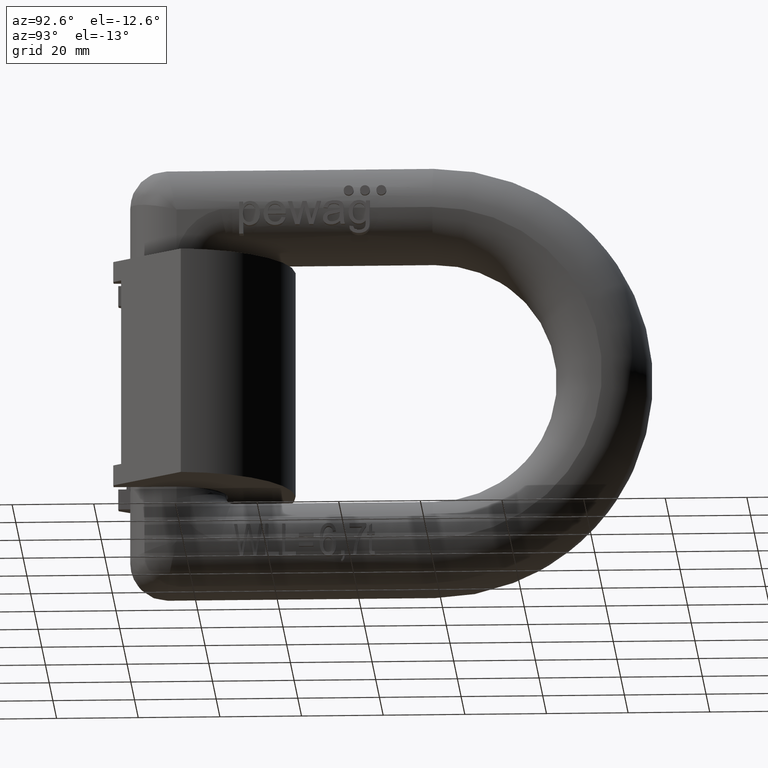
[diagram: clean part render]
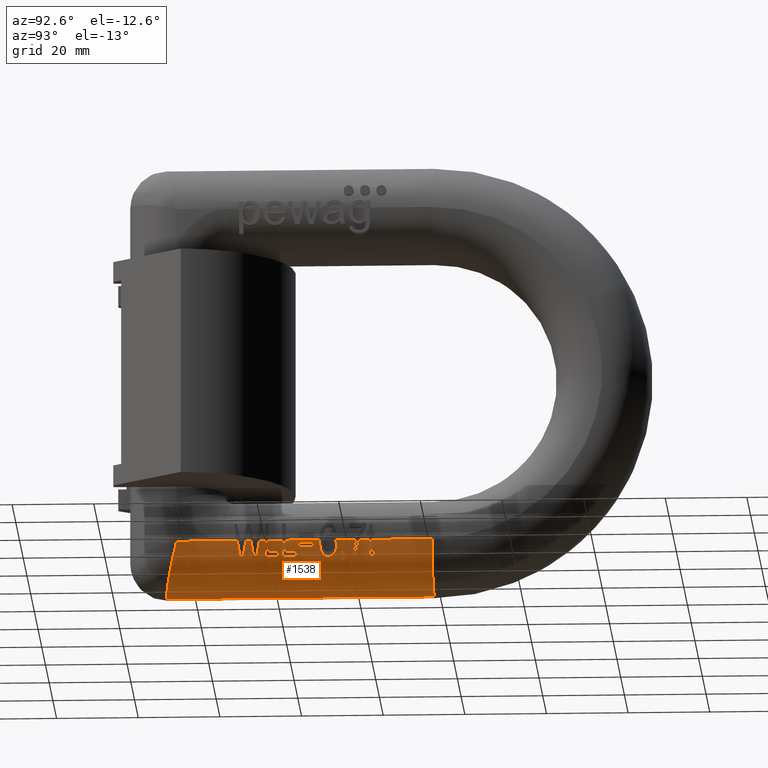
[diagram: same view with one face highlighted and labeled with its STEP entity id]
A machine part, auxiliary view. The second image highlights one B-rep face of the part: STEP entity #1538.
In plain terms, the highlighted cylindrical surface (partial cylindrical patch) has radius 11.9 mm, axis along (-0, -1, 0).
Its self-contained STEP definition (entity closure, byte-faithful):
#234=FACE_BOUND('',#2509,.T.);
#235=FACE_BOUND('',#2510,.T.);
#236=FACE_BOUND('',#2511,.T.);
#305=ELLIPSE('',#8958,12.102893621517,11.9);
#306=ELLIPSE('',#8959,12.1060174139765,11.9);
#307=ELLIPSE('',#8960,12.1090062409468,11.9);
#308=ELLIPSE('',#8961,12.0899635809989,11.9);
#309=ELLIPSE('',#8962,12.2482651832821,11.9);
#310=ELLIPSE('',#8964,11.9718380233263,11.9);
#311=ELLIPSE('',#8974,13.3524083678477,11.9);
#715=B_SPLINE_CURVE_WITH_KNOTS('',3,(#14803,#14804,#14805,#14806,#14807,
#14808,#14809,#14810),.UNSPECIFIED.,.F.,.F.,(4,2,2,4),(0.,0.250000000000002,
0.500000000000004,1.),.UNSPECIFIED.);
#716=B_SPLINE_CURVE_WITH_KNOTS('',3,(#14812,#14813,#14814,#14815,#14816,
#14817,#14818,#14819,#14820,#14821),.UNSPECIFIED.,.F.,.F.,(4,3,3,4),(0.,
0.277381054017758,0.554361829168191,1.),.UNSPECIFIED.);
#717=B_SPLINE_CURVE_WITH_KNOTS('',3,(#14823,#14824,#14825,#14826,#14827,
#14828,#14829,#14830,#14831,#14832),.UNSPECIFIED.,.F.,.F.,(4,3,3,4),(0.,
0.302697489149676,0.785221035381137,1.),.UNSPECIFIED.);
#718=B_SPLINE_CURVE_WITH_KNOTS('',3,(#14834,#14835,#14836,#14837,#14838,
#14839,#14840,#14841,#14842,#14843),.UNSPECIFIED.,.F.,.F.,(4,3,3,4),(0.,
0.312443709364124,0.65513485716501,1.),.UNSPECIFIED.);
#719=B_SPLINE_CURVE_WITH_KNOTS('',3,(#14847,#14848,#14849,#14850,#14851,
#14852,#14853,#14854,#14855,#14856,#14857,#14858,#14859,#14860,#14861,#14862),
 .UNSPECIFIED.,.F.,.F.,(4,3,3,3,3,4),(0.,0.204822285861984,0.35474350545683,
0.507028701803558,0.710336197583031,1.),.UNSPECIFIED.);
#720=B_SPLINE_CURVE_WITH_KNOTS('',3,(#14864,#14865,#14866,#14867,#14868,
#14869,#14870,#14871,#14872,#14873),.UNSPECIFIED.,.F.,.F.,(4,3,3,4),(0.,
0.374425395853647,0.685134623875943,1.),.UNSPECIFIED.);
#721=B_SPLINE_CURVE_WITH_KNOTS('',3,(#14874,#14875,#14876,#14877),
 .UNSPECIFIED.,.F.,.F.,(4,4),(0.,1.),.UNSPECIFIED.);
#722=B_SPLINE_CURVE_WITH_KNOTS('',3,(#14879,#14880,#14881,#14882,#14883,
#14884,#14885,#14886,#14887,#14888),.UNSPECIFIED.,.F.,.F.,(4,3,3,4),(0.,
0.496226189770755,0.747539893670818,1.),.UNSPECIFIED.);
#723=B_SPLINE_CURVE_WITH_KNOTS('',3,(#14892,#14893,#14894,#14895),
 .UNSPECIFIED.,.F.,.F.,(4,4),(0.,1.),.UNSPECIFIED.);
#724=B_SPLINE_CURVE_WITH_KNOTS('',3,(#14896,#14897,#14898,#14899,#14900,
#14901,#14902,#14903,#14904,#14905,#14906,#14907,#14908,#14909),
 .UNSPECIFIED.,.F.,.F.,(4,2,2,2,2,2,4),(0.,0.25,0.374999999999999,0.499999999999999,
0.624999999999999,0.749999999999999,1.),.UNSPECIFIED.);
#725=B_SPLINE_CURVE_WITH_KNOTS('',3,(#14943,#14944,#14945,#14946,#14947,
#14948,#14949,#14950,#14951,#14952),.UNSPECIFIED.,.F.,.F.,(4,3,3,4),(0.,
0.264014276087498,0.630531512968283,1.),.UNSPECIFIED.);
#726=B_SPLINE_CURVE_WITH_KNOTS('',3,(#14954,#14955,#14956,#14957,#14958,
#14959,#14960,#14961,#14962,#14963,#14964,#14965,#14966),.UNSPECIFIED.,
 .F.,.F.,(4,3,3,3,4),(0.,0.246504200099053,0.493094680184417,0.743524338618405,
1.),.UNSPECIFIED.);
#727=B_SPLINE_CURVE_WITH_KNOTS('',3,(#14970,#14971,#14972,#14973,#14974,
#14975,#14976,#14977,#14978,#14979,#14980,#14981,#14982),.UNSPECIFIED.,
 .F.,.F.,(4,3,3,3,4),(0.,0.346221630554715,0.698864889148944,0.902314569395443,
1.),.UNSPECIFIED.);
#1538=ADVANCED_FACE('',(#234,#235,#236),#1786,.T.);
#1786=CYLINDRICAL_SURFACE('',#8975,11.9);
#2509=EDGE_LOOP('',(#4244,#4245,#4246,#4247,#4248,#4249,#4250,#4251,#4252,
#4253,#4254,#4255,#4256,#4257,#4258,#4259,#4260,#4261,#4262,#4263,#4264,
#4265,#4266,#4267,#4268,#4269,#4270,#4271,#4272,#4273,#4274,#4275,#4276,
#4277,#4278,#4279,#4280,#4281,#4282,#4283,#4284));
#2510=EDGE_LOOP('',(#4285,#4286,#4287,#4288));
#2511=EDGE_LOOP('',(#4289,#4290,#4291,#4292,#4293,#4294,#4295));
#2809=CIRCLE('',#8963,11.9);
#2810=CIRCLE('',#8965,11.9);
#2811=CIRCLE('',#8966,11.9);
#2812=CIRCLE('',#8967,11.9);
#2813=CIRCLE('',#8968,11.9);
#2814=CIRCLE('',#8969,11.9);
#2815=CIRCLE('',#8970,11.9);
#2816=CIRCLE('',#8971,11.9);
#2817=CIRCLE('',#8972,11.9);
#2818=CIRCLE('',#8973,11.9);
#4244=ORIENTED_EDGE('',*,*,#6936,.F.);
#4245=ORIENTED_EDGE('',*,*,#6937,.F.);
#4246=ORIENTED_EDGE('',*,*,#6938,.F.);
#4247=ORIENTED_EDGE('',*,*,#6939,.T.);
#4248=ORIENTED_EDGE('',*,*,#6940,.F.);
#4249=ORIENTED_EDGE('',*,*,#6941,.F.);
#4250=ORIENTED_EDGE('',*,*,#6942,.F.);
#4251=ORIENTED_EDGE('',*,*,#6931,.T.);
#4252=ORIENTED_EDGE('',*,*,#6943,.T.);
#4253=ORIENTED_EDGE('',*,*,#6944,.F.);
#4254=ORIENTED_EDGE('',*,*,#6945,.F.);
#4255=ORIENTED_EDGE('',*,*,#6277,.F.);
#4256=ORIENTED_EDGE('',*,*,#6946,.T.);
#4257=ORIENTED_EDGE('',*,*,#6928,.T.);
#4258=ORIENTED_EDGE('',*,*,#6947,.F.);
#4259=ORIENTED_EDGE('',*,*,#6948,.F.);
#4260=ORIENTED_EDGE('',*,*,#6949,.F.);
#4261=ORIENTED_EDGE('',*,*,#6950,.F.);
#4262=ORIENTED_EDGE('',*,*,#6951,.F.);
#4263=ORIENTED_EDGE('',*,*,#6952,.F.);
#4264=ORIENTED_EDGE('',*,*,#6953,.F.);
#4265=ORIENTED_EDGE('',*,*,#6916,.T.);
#4266=ORIENTED_EDGE('',*,*,#6954,.F.);
#4267=ORIENTED_EDGE('',*,*,#6955,.F.);
#4268=ORIENTED_EDGE('',*,*,#6956,.F.);
#4269=ORIENTED_EDGE('',*,*,#6957,.F.);
#4270=ORIENTED_EDGE('',*,*,#6909,.T.);
#4271=ORIENTED_EDGE('',*,*,#6958,.F.);
#4272=ORIENTED_EDGE('',*,*,#6899,.T.);
#4273=ORIENTED_EDGE('',*,*,#6959,.F.);
#4274=ORIENTED_EDGE('',*,*,#6960,.F.);
#4275=ORIENTED_EDGE('',*,*,#6961,.F.);
#4276=ORIENTED_EDGE('',*,*,#6962,.F.);
#4277=ORIENTED_EDGE('',*,*,#6963,.F.);
#4278=ORIENTED_EDGE('',*,*,#6895,.T.);
#4279=ORIENTED_EDGE('',*,*,#6964,.F.);
#4280=ORIENTED_EDGE('',*,*,#6965,.F.);
#4281=ORIENTED_EDGE('',*,*,#6966,.F.);
#4282=ORIENTED_EDGE('',*,*,#6967,.F.);
#4283=ORIENTED_EDGE('',*,*,#6968,.F.);
#4284=ORIENTED_EDGE('',*,*,#6891,.T.);
#4285=ORIENTED_EDGE('',*,*,#6969,.F.);
#4286=ORIENTED_EDGE('',*,*,#6970,.F.);
#4287=ORIENTED_EDGE('',*,*,#6971,.F.);
#4288=ORIENTED_EDGE('',*,*,#6972,.F.);
#4289=ORIENTED_EDGE('',*,*,#6973,.F.);
#4290=ORIENTED_EDGE('',*,*,#6974,.F.);
#4291=ORIENTED_EDGE('',*,*,#6975,.F.);
#4292=ORIENTED_EDGE('',*,*,#6976,.F.);
#4293=ORIENTED_EDGE('',*,*,#6977,.F.);
#4294=ORIENTED_EDGE('',*,*,#6978,.F.);
#4295=ORIENTED_EDGE('',*,*,#6979,.F.);
#5420=VERTEX_POINT('',#10951);
#5422=VERTEX_POINT('',#10957);
#5821=VERTEX_POINT('',#14565);
#5828=VERTEX_POINT('',#14590);
#5829=VERTEX_POINT('',#14592);
#5832=VERTEX_POINT('',#14598);
#5833=VERTEX_POINT('',#14600);
#5836=VERTEX_POINT('',#14606);
#5837=VERTEX_POINT('',#14608);
#5846=VERTEX_POINT('',#14718);
#5847=VERTEX_POINT('',#14720);
#5853=VERTEX_POINT('',#14738);
#5854=VERTEX_POINT('',#14740);
#5865=VERTEX_POINT('',#14768);
#5866=VERTEX_POINT('',#14770);
#5867=VERTEX_POINT('',#14773);
#5872=VERTEX_POINT('',#14785);
#5873=VERTEX_POINT('',#14787);
#5874=VERTEX_POINT('',#14789);
#5875=VERTEX_POINT('',#14791);
#5876=VERTEX_POINT('',#14793);
#5877=VERTEX_POINT('',#14795);
#5878=VERTEX_POINT('',#14798);
#5879=VERTEX_POINT('',#14800);
#5880=VERTEX_POINT('',#14811);
#5881=VERTEX_POINT('',#14822);
#5882=VERTEX_POINT('',#14833);
#5883=VERTEX_POINT('',#14844);
#5884=VERTEX_POINT('',#14846);
#5885=VERTEX_POINT('',#14863);
#5886=VERTEX_POINT('',#14878);
#5887=VERTEX_POINT('',#14889);
#5888=VERTEX_POINT('',#14891);
#5889=VERTEX_POINT('',#14911);
#5890=VERTEX_POINT('',#14913);
#5891=VERTEX_POINT('',#14915);
#5892=VERTEX_POINT('',#14917);
#5893=VERTEX_POINT('',#14920);
#5894=VERTEX_POINT('',#14922);
#5895=VERTEX_POINT('',#14924);
#5896=VERTEX_POINT('',#14926);
#5897=VERTEX_POINT('',#14929);
#5898=VERTEX_POINT('',#14930);
#5899=VERTEX_POINT('',#14932);
#5900=VERTEX_POINT('',#14934);
#5901=VERTEX_POINT('',#14937);
#5902=VERTEX_POINT('',#14938);
#5903=VERTEX_POINT('',#14940);
#5904=VERTEX_POINT('',#14942);
#5905=VERTEX_POINT('',#14953);
#5906=VERTEX_POINT('',#14967);
#5907=VERTEX_POINT('',#14969);
#6277=EDGE_CURVE('',#5420,#5422,#7523,.T.);
#6891=EDGE_CURVE('',#5829,#5828,#7760,.T.);
#6895=EDGE_CURVE('',#5833,#5832,#7762,.T.);
#6899=EDGE_CURVE('',#5837,#5836,#7764,.T.);
#6909=EDGE_CURVE('',#5847,#5846,#7765,.T.);
#6916=EDGE_CURVE('',#5854,#5853,#7768,.T.);
#6928=EDGE_CURVE('',#5866,#5865,#7773,.T.);
#6931=EDGE_CURVE('',#5821,#5867,#7774,.T.);
#6936=EDGE_CURVE('',#5872,#5828,#305,.T.);
#6937=EDGE_CURVE('',#5873,#5872,#7777,.T.);
#6938=EDGE_CURVE('',#5874,#5873,#306,.T.);
#6939=EDGE_CURVE('',#5874,#5875,#7778,.T.);
#6940=EDGE_CURVE('',#5876,#5875,#307,.T.);
#6941=EDGE_CURVE('',#5877,#5876,#7779,.T.);
#6942=EDGE_CURVE('',#5821,#5877,#308,.T.);
#6943=EDGE_CURVE('',#5867,#5878,#7780,.T.);
#6944=EDGE_CURVE('',#5879,#5878,#7781,.T.);
#6945=EDGE_CURVE('',#5422,#5879,#309,.T.);
#6946=EDGE_CURVE('',#5420,#5866,#2809,.T.);
#6947=EDGE_CURVE('',#5880,#5865,#715,.T.);
#6948=EDGE_CURVE('',#5881,#5880,#716,.T.);
#6949=EDGE_CURVE('',#5882,#5881,#717,.T.);
#6950=EDGE_CURVE('',#5883,#5882,#718,.T.);
#6951=EDGE_CURVE('',#5884,#5883,#310,.T.);
#6952=EDGE_CURVE('',#5885,#5884,#719,.T.);
#6953=EDGE_CURVE('',#5854,#5885,#720,.T.);
#6954=EDGE_CURVE('',#5886,#5853,#721,.T.);
#6955=EDGE_CURVE('',#5887,#5886,#722,.T.);
#6956=EDGE_CURVE('',#5888,#5887,#7782,.T.);
#6957=EDGE_CURVE('',#5847,#5888,#723,.T.);
#6958=EDGE_CURVE('',#5837,#5846,#724,.T.);
#6959=EDGE_CURVE('',#5889,#5836,#2810,.T.);
#6960=EDGE_CURVE('',#5890,#5889,#7783,.T.);
#6961=EDGE_CURVE('',#5891,#5890,#2811,.T.);
#6962=EDGE_CURVE('',#5892,#5891,#7784,.T.);
#6963=EDGE_CURVE('',#5833,#5892,#2812,.T.);
#6964=EDGE_CURVE('',#5893,#5832,#2813,.T.);
#6965=EDGE_CURVE('',#5894,#5893,#7785,.T.);
#6966=EDGE_CURVE('',#5895,#5894,#2814,.T.);
#6967=EDGE_CURVE('',#5896,#5895,#7786,.T.);
#6968=EDGE_CURVE('',#5829,#5896,#2815,.T.);
#6969=EDGE_CURVE('',#5897,#5898,#2816,.T.);
#6970=EDGE_CURVE('',#5899,#5897,#7787,.T.);
#6971=EDGE_CURVE('',#5900,#5899,#2817,.T.);
#6972=EDGE_CURVE('',#5898,#5900,#7788,.T.);
#6973=EDGE_CURVE('',#5901,#5902,#7789,.T.);
#6974=EDGE_CURVE('',#5903,#5901,#2818,.T.);
#6975=EDGE_CURVE('',#5904,#5903,#7790,.T.);
#6976=EDGE_CURVE('',#5905,#5904,#725,.T.);
#6977=EDGE_CURVE('',#5906,#5905,#726,.T.);
#6978=EDGE_CURVE('',#5907,#5906,#311,.T.);
#6979=EDGE_CURVE('',#5902,#5907,#727,.T.);
#7523=LINE('',#10956,#8049);
#7760=LINE('',#14591,#8368);
#7762=LINE('',#14599,#8370);
#7764=LINE('',#14607,#8372);
#7765=LINE('',#14719,#8373);
#7768=LINE('',#14739,#8376);
#7773=LINE('',#14769,#8381);
#7774=LINE('',#14774,#8382);
#7777=LINE('',#14786,#8385);
#7778=LINE('',#14790,#8386);
#7779=LINE('',#14794,#8387);
#7780=LINE('',#14797,#8388);
#7781=LINE('',#14799,#8389);
#7782=LINE('',#14890,#8390);
#7783=LINE('',#14912,#8391);
#7784=LINE('',#14916,#8392);
#7785=LINE('',#14921,#8393);
#7786=LINE('',#14925,#8394);
#7787=LINE('',#14931,#8395);
#7788=LINE('',#14935,#8396);
#7789=LINE('',#14936,#8397);
#7790=LINE('',#14941,#8398);
#8049=VECTOR('',#9288,1.);
#8368=VECTOR('',#10061,1.);
#8370=VECTOR('',#10067,1.);
#8372=VECTOR('',#10073,1.);
#8373=VECTOR('',#10076,1.);
#8376=VECTOR('',#10083,1.);
#8381=VECTOR('',#10098,1.);
#8382=VECTOR('',#10103,1.);
#8385=VECTOR('',#10114,1.);
#8386=VECTOR('',#10117,1.);
#8387=VECTOR('',#10120,1.);
#8388=VECTOR('',#10123,1.);
#8389=VECTOR('',#10124,1.);
#8390=VECTOR('',#10131,1.);
#8391=VECTOR('',#10134,1.);
#8392=VECTOR('',#10137,1.);
#8393=VECTOR('',#10142,1.);
#8394=VECTOR('',#10145,1.);
#8395=VECTOR('',#10150,1.);
#8396=VECTOR('',#10153,1.);
#8397=VECTOR('',#10154,1.);
#8398=VECTOR('',#10157,1.);
#8958=AXIS2_PLACEMENT_3D('',#14784,#10112,#10113);
#8959=AXIS2_PLACEMENT_3D('',#14788,#10115,#10116);
#8960=AXIS2_PLACEMENT_3D('',#14792,#10118,#10119);
#8961=AXIS2_PLACEMENT_3D('',#14796,#10121,#10122);
#8962=AXIS2_PLACEMENT_3D('',#14801,#10125,#10126);
#8963=AXIS2_PLACEMENT_3D('',#14802,#10127,#10128);
#8964=AXIS2_PLACEMENT_3D('',#14845,#10129,#10130);
#8965=AXIS2_PLACEMENT_3D('',#14910,#10132,#10133);
#8966=AXIS2_PLACEMENT_3D('',#14914,#10135,#10136);
#8967=AXIS2_PLACEMENT_3D('',#14918,#10138,#10139);
#8968=AXIS2_PLACEMENT_3D('',#14919,#10140,#10141);
#8969=AXIS2_PLACEMENT_3D('',#14923,#10143,#10144);
#8970=AXIS2_PLACEMENT_3D('',#14927,#10146,#10147);
#8971=AXIS2_PLACEMENT_3D('',#14928,#10148,#10149);
#8972=AXIS2_PLACEMENT_3D('',#14933,#10151,#10152);
#8973=AXIS2_PLACEMENT_3D('',#14939,#10155,#10156);
#8974=AXIS2_PLACEMENT_3D('',#14968,#10158,#10159);
#8975=AXIS2_PLACEMENT_3D('',#14983,#10160,#10161);
#9288=DIRECTION('',(-7.44604991267276E-31,-1.,3.17811934530102E-16));
#10061=DIRECTION('',(-7.44604991267276E-31,-1.,3.17811934530102E-16));
#10067=DIRECTION('',(-7.44604991267276E-31,-1.,3.17811934530102E-16));
#10073=DIRECTION('',(-7.44604991267276E-31,-1.,3.17811934530102E-16));
#10076=DIRECTION('',(-7.44604991267276E-31,-1.,3.17811934530102E-16));
#10083=DIRECTION('',(-7.44604991267276E-31,-1.,3.17811934530102E-16));
#10098=DIRECTION('',(-7.44604991267276E-31,-1.,3.17811934530102E-16));
#10103=DIRECTION('',(-7.44604991267276E-31,-1.,3.17811934530102E-16));
#10112=DIRECTION('',(-4.27201257454054E-16,-0.983235941101205,0.182337829664682));
#10113=DIRECTION('',(2.30363403570671E-15,-0.182337829664682,-0.983235941101205));
#10114=DIRECTION('',(7.44604991267276E-31,1.,-3.17811934530102E-16));
#10115=DIRECTION('',(-4.30394260322035E-16,0.982982230494844,0.183700665571418));
#10116=DIRECTION('',(-2.30303961440496E-15,-0.183700665571418,0.982982230494844));
#10117=DIRECTION('',(-7.44604991267276E-31,-1.,3.17811934530102E-16));
#10118=DIRECTION('',(-4.33424999748285E-16,-0.98273960416008,0.184994244276113));
#10119=DIRECTION('',(2.30247116256206E-15,-0.184994244276113,-0.98273960416008));
#10120=DIRECTION('',(7.44604991267276E-31,1.,-3.17811934530102E-16));
#10121=DIRECTION('',(-4.13695423775484E-16,0.984287497664806,0.176573276406017));
#10122=DIRECTION('',(-2.30609773886189E-15,-0.176573276406017,0.984287497664806));
#10123=DIRECTION('',(-7.44604991267276E-31,-1.,3.17811934530102E-16));
#10124=DIRECTION('',(7.44604991267276E-31,1.,-3.17811934530102E-16));
#10125=DIRECTION('',(-5.54726813381908E-16,-0.971566162385393,0.236768224446861));
#10126=DIRECTION('',(2.27629278594645E-15,-0.236768224446861,-0.971566162385394));
#10127=DIRECTION('',(0.,-1.,0.));
#10128=DIRECTION('',(-2.34265112269189E-15,0.,1.));
#10129=DIRECTION('',(2.56280182955847E-16,-0.993999415696547,-0.109385381084144));
#10130=DIRECTION('',(-2.32885189581923E-15,-0.109385381084144,0.993999415696547));
#10131=DIRECTION('',(7.44604991267276E-31,1.,-3.17811934530102E-16));
#10132=DIRECTION('',(0.,-1.,0.));
#10133=DIRECTION('',(2.34265112269189E-15,0.,-1.));
#10134=DIRECTION('',(-7.44604991267276E-31,-1.,3.17811934530102E-16));
#10135=DIRECTION('',(0.,-1.,0.));
#10136=DIRECTION('',(2.34265112269189E-15,0.,-1.));
#10137=DIRECTION('',(7.44604991267276E-31,1.,-3.17811934530102E-16));
#10138=DIRECTION('',(0.,1.,0.));
#10139=DIRECTION('',(-2.34265112269189E-15,0.,1.));
#10140=DIRECTION('',(0.,-1.,0.));
#10141=DIRECTION('',(2.34265112269189E-15,0.,-1.));
#10142=DIRECTION('',(-7.44604991267276E-31,-1.,3.17811934530102E-16));
#10143=DIRECTION('',(0.,-1.,0.));
#10144=DIRECTION('',(2.34265112269189E-15,0.,-1.));
#10145=DIRECTION('',(7.44604991267276E-31,1.,-3.17811934530102E-16));
#10146=DIRECTION('',(0.,1.,0.));
#10147=DIRECTION('',(-2.34265112269189E-15,0.,1.));
#10148=DIRECTION('',(0.,-1.,0.));
#10149=DIRECTION('',(2.34265112269189E-15,0.,-1.));
#10150=DIRECTION('',(7.44604991267276E-31,1.,-3.17811934530102E-16));
#10151=DIRECTION('',(0.,1.,0.));
#10152=DIRECTION('',(-2.34265112269189E-15,0.,1.));
#10153=DIRECTION('',(-7.44604991267276E-31,-1.,3.17811934530102E-16));
#10154=DIRECTION('',(7.44604991267276E-31,1.,-3.17811934530102E-16));
#10155=DIRECTION('',(0.,1.,0.));
#10156=DIRECTION('',(-2.34265112269189E-15,0.,1.));
#10157=DIRECTION('',(-7.44604991267276E-31,-1.,3.17811934530102E-16));
#10158=DIRECTION('',(-1.06265406543024E-15,0.891224988943188,0.453561483244792));
#10159=DIRECTION('',(-2.088060588695E-15,-0.453561483244792,0.891224988943187));
#10160=DIRECTION('',(-7.44604991267276E-31,-1.,3.17811934530102E-16));
#10161=DIRECTION('',(-2.34265112269189E-15,2.91550164029715E-16,1.));
#10951=CARTESIAN_POINT('',(0.100000000000125,78.,-53.5));
#10956=CARTESIAN_POINT('',(0.100000000000125,12.5,-53.5));
#10957=CARTESIAN_POINT('',(0.100000000000125,12.5,-53.5));
#14565=CARTESIAN_POINT('',(12.0000000000001,30.235507090136,-41.6));
#14590=CARTESIAN_POINT('',(12.0000000000001,35.6953026595531,-41.6));
#14591=CARTESIAN_POINT('',(12.0000000000001,78.,-41.6));
#14592=CARTESIAN_POINT('',(12.0000000000001,37.093625897549,-41.6));
#14598=CARTESIAN_POINT('',(12.0000000000001,37.8091178948213,-41.6));
#14599=CARTESIAN_POINT('',(12.0000000000001,78.,-41.6));
#14600=CARTESIAN_POINT('',(12.0000000000001,41.2966224076377,-41.6));
#14606=CARTESIAN_POINT('',(12.0000000000001,42.0121144049099,-41.6));
#14607=CARTESIAN_POINT('',(12.0000000000001,78.,-41.6));
#14608=CARTESIAN_POINT('',(12.0000000000001,50.4389682744555,-41.6));
#14718=CARTESIAN_POINT('',(12.0000000000001,54.3277966693837,-41.6));
#14719=CARTESIAN_POINT('',(12.0000000000001,78.,-41.6));
#14720=CARTESIAN_POINT('',(12.0000000000001,59.374371627192,-41.6));
#14738=CARTESIAN_POINT('',(12.0000000000001,60.2144396085636,-41.6));
#14739=CARTESIAN_POINT('',(12.0000000000001,78.,-41.6));
#14740=CARTESIAN_POINT('',(12.0000000000001,62.5759356572666,-41.6));
#14768=CARTESIAN_POINT('',(12.0000000000001,63.2360704400498,-41.6));
#14769=CARTESIAN_POINT('',(12.0000000000001,78.,-41.6));
#14770=CARTESIAN_POINT('',(12.0000000000001,78.,-41.6));
#14773=CARTESIAN_POINT('',(12.0000000000001,29.,-41.6));
#14774=CARTESIAN_POINT('',(12.0000000000001,78.,-41.6));
#14784=CARTESIAN_POINT('',(0.100000000000097,35.6953026595531,-41.6));
#14785=CARTESIAN_POINT('',(11.3427754580443,34.9720606522524,-45.5));
#14786=CARTESIAN_POINT('',(11.3427754580443,12.5,-45.5));
#14787=CARTESIAN_POINT('',(11.3427754580443,34.2814794015003,-45.5));
#14788=CARTESIAN_POINT('',(0.100000000000097,33.5526436468927,-41.6));
#14789=CARTESIAN_POINT('',(12.0000000000001,33.5526436468927,-41.6));
#14790=CARTESIAN_POINT('',(12.0000000000001,78.,-41.6));
#14791=CARTESIAN_POINT('',(12.0000000000001,32.4000002763894,-41.6));
#14792=CARTESIAN_POINT('',(0.100000000000097,32.4000002763894,-41.6));
#14793=CARTESIAN_POINT('',(11.3427754580443,31.665851016888,-45.5));
#14794=CARTESIAN_POINT('',(11.3427754580443,12.5,-45.5));
#14795=CARTESIAN_POINT('',(11.3427754580443,30.9351357856312,-45.5));
#14796=CARTESIAN_POINT('',(0.100000000000097,30.235507090136,-41.6));
#14797=CARTESIAN_POINT('',(12.0000000000001,78.,-41.6));
#14798=CARTESIAN_POINT('',(12.0000000000001,26.1277186767309,-41.6));
#14799=CARTESIAN_POINT('',(12.0000000000001,78.,-41.6));
#14800=CARTESIAN_POINT('',(12.0000000000001,15.4,-41.6));
#14801=CARTESIAN_POINT('',(0.100000000000097,15.4,-41.6));
#14802=CARTESIAN_POINT('',(0.100000000000097,78.,-41.6));
#14803=CARTESIAN_POINT('',(11.6666470843968,63.2720526294677,-44.3969045791762));
#14804=CARTESIAN_POINT('',(11.7216139945851,63.2050479097143,-44.1695879748838));
#14805=CARTESIAN_POINT('',(11.7703332368442,63.2360704400498,-43.938516911726));
#14806=CARTESIAN_POINT('',(11.8536365223772,63.2360704400498,-43.4754646638262));
#14807=CARTESIAN_POINT('',(11.8884415078136,63.2360704400498,-43.2426034870778));
#14808=CARTESIAN_POINT('',(11.9721038075462,63.2360704400498,-42.540823457644));
#14809=CARTESIAN_POINT('',(12.0000000000001,63.2360704400498,-42.0712648779545));
#14810=CARTESIAN_POINT('',(12.0000000000001,63.2360704400498,-41.6));
#14811=CARTESIAN_POINT('',(11.6666470843968,63.2720526294677,-44.3969045791762));
#14812=CARTESIAN_POINT('',(11.6184286354404,63.3855349191705,-44.5892811460731));
#14813=CARTESIAN_POINT('',(11.6220762899993,63.3698318025005,-44.5752258442563));
#14814=CARTESIAN_POINT('',(11.6260925129455,63.3554654017719,-44.5596429078684));
#14815=CARTESIAN_POINT('',(11.6303384937249,63.3427105715029,-44.5430076826483));
#14816=CARTESIAN_POINT('',(11.6345810223945,63.329966111294,-44.5263859823661));
#14817=CARTESIAN_POINT('',(11.6390815687909,63.3187252295299,-44.5086006933281));
#14818=CARTESIAN_POINT('',(11.6436989468358,63.3089652707157,-44.4901582352562));
#14819=CARTESIAN_POINT('',(11.6511088377439,63.2933026523692,-44.4605620876032));
#14820=CARTESIAN_POINT('',(11.6588837709966,63.2812795292704,-44.4290098955228));
#14821=CARTESIAN_POINT('',(11.6666470843968,63.2720526294677,-44.3969045791762));
#14822=CARTESIAN_POINT('',(11.6184286354404,63.3855349191705,-44.5892811460731));
#14823=CARTESIAN_POINT('',(11.6001456535525,63.612499498576,-44.6588641596316));
#14824=CARTESIAN_POINT('',(11.6001456535525,63.5878778685558,-44.6588641596316));
#14825=CARTESIAN_POINT('',(11.6005184550737,63.5631668428553,-44.6574643088456));
#14826=CARTESIAN_POINT('',(11.6014343164014,63.5388052067873,-44.6540151711323));
#14827=CARTESIAN_POINT('',(11.602877421974,63.5004190322636,-44.6485804293173));
#14828=CARTESIAN_POINT('',(11.6057891526415,63.4618846777935,-44.6376282013369));
#14829=CARTESIAN_POINT('',(11.6106633504823,63.4281800376308,-44.6190444236325));
#14830=CARTESIAN_POINT('',(11.6128653910387,63.4129531250179,-44.6106487381198));
#14831=CARTESIAN_POINT('',(11.6154815147141,63.3985561216299,-44.6006371203376));
#14832=CARTESIAN_POINT('',(11.6184286354403,63.3855349191705,-44.5892811460731));
#14833=CARTESIAN_POINT('',(11.6001456535525,63.612499498576,-44.6588641596316));
#14834=CARTESIAN_POINT('',(11.6098808981423,63.9045088050062,-44.62202609363));
#14835=CARTESIAN_POINT('',(11.6082708453142,63.8744452265449,-44.628158243293));
#14836=CARTESIAN_POINT('',(11.6067703287881,63.8442795067103,-44.6338529992061));
#14837=CARTESIAN_POINT('',(11.6054330943318,63.8140042030608,-44.6389158119066));
#14838=CARTESIAN_POINT('',(11.6039667072347,63.7808048531437,-44.6444676006633));
#14839=CARTESIAN_POINT('',(11.6026913950165,63.7474498098593,-44.6492793197177));
#14840=CARTESIAN_POINT('',(11.6017418879605,63.7139614410884,-44.6528566200753));
#14841=CARTESIAN_POINT('',(11.6007869761723,63.6802824516566,-44.6564542829464));
#14842=CARTESIAN_POINT('',(11.6001456535525,63.6463835562403,-44.6588641596316));
#14843=CARTESIAN_POINT('',(11.6001456535525,63.612499498576,-44.6588641596316));
#14844=CARTESIAN_POINT('',(11.6098808981423,63.9045088050062,-44.62202609363));
#14845=CARTESIAN_POINT('',(0.100000000000097,63.5719477685731,-41.6));
#14846=CARTESIAN_POINT('',(11.3463198913936,64.,-45.4897672038884));
#14847=CARTESIAN_POINT('',(11.5152794020725,62.6575875486381,-44.9617549245331));
#14848=CARTESIAN_POINT('',(11.484441146905,62.6882722790627,-45.0664702612877));
#14849=CARTESIAN_POINT('',(11.4527426370485,62.7345929119453,-45.168473592411));
#14850=CARTESIAN_POINT('',(11.4239602729494,62.7985357741218,-45.2575844127875));
#14851=CARTESIAN_POINT('',(11.4028008072111,62.8455436153391,-45.3230945753361));
#14852=CARTESIAN_POINT('',(11.3825554955039,62.9021509605289,-45.3837239632985));
#14853=CARTESIAN_POINT('',(11.3660543393576,62.9679043023641,-45.4322342859804));
#14854=CARTESIAN_POINT('',(11.3493977912713,63.0342768456217,-45.4812014319958));
#14855=CARTESIAN_POINT('',(11.3370447151172,63.1129889364986,-45.5165523369804));
#14856=CARTESIAN_POINT('',(11.3292390696784,63.1937626860953,-45.538805645878));
#14857=CARTESIAN_POINT('',(11.3188001052008,63.3017863350518,-45.5685663495779));
#14858=CARTESIAN_POINT('',(11.3153258197885,63.4166438826438,-45.5782504158295));
#14859=CARTESIAN_POINT('',(11.3163616819871,63.5291346162071,-45.5753277372882));
#14860=CARTESIAN_POINT('',(11.3178329745789,63.6889114505688,-45.5711764946889));
#14861=CARTESIAN_POINT('',(11.3301918815727,63.8479686123644,-45.5363974385916));
#14862=CARTESIAN_POINT('',(11.3463198913936,64.,-45.4897672038884));
#14863=CARTESIAN_POINT('',(11.5152794020725,62.6575875486381,-44.9617549245331));
#14864=CARTESIAN_POINT('',(12.0000000000001,62.5759356572666,-41.6));
#14865=CARTESIAN_POINT('',(12.0000000000001,62.5759356572666,-42.0257863654553));
#14866=CARTESIAN_POINT('',(11.9770819376295,62.5759356572666,-42.4521846489142));
#14867=CARTESIAN_POINT('',(11.931443434409,62.5759356572666,-42.8755180353031));
#14868=CARTESIAN_POINT('',(11.8935542660604,62.5759356572666,-43.2269701823407));
#14869=CARTESIAN_POINT('',(11.8399350932306,62.5739580789609,-43.5770868818634));
#14870=CARTESIAN_POINT('',(11.7709094664599,62.5763390527715,-43.9237625149097));
#14871=CARTESIAN_POINT('',(11.7011272450016,62.5787461246013,-44.2742380836409));
#14872=CARTESIAN_POINT('',(11.6123877130453,62.5598770076595,-44.632010928643));
#14873=CARTESIAN_POINT('',(11.5152794020725,62.6575875486381,-44.9617549245331));
#14874=CARTESIAN_POINT('',(11.8779528762395,59.7308424313957,-43.2999488360194));
#14875=CARTESIAN_POINT('',(11.9603187558928,59.8584715668157,-42.7292837497469));
#14876=CARTESIAN_POINT('',(12.0000000000001,60.0204710303088,-42.1577707106684));
#14877=CARTESIAN_POINT('',(12.0000000000001,60.2144396085639,-41.6000000000003));
#14878=CARTESIAN_POINT('',(11.8779528762395,59.7308424313957,-43.2999488360194));
#14879=CARTESIAN_POINT('',(11.3427754580443,59.4376586013573,-45.5));
#14880=CARTESIAN_POINT('',(11.4665981857226,59.4562336909787,-45.1430484297717));
#14881=CARTESIAN_POINT('',(11.573370984669,59.4873139806052,-44.780038571344));
#14882=CARTESIAN_POINT('',(11.6621724705686,59.5342656393043,-44.4153450518238));
#14883=CARTESIAN_POINT('',(11.7072068896667,59.5580765097395,-44.2303958853308));
#14884=CARTESIAN_POINT('',(11.7476995254497,59.5860046755223,-44.0447578303144));
#14885=CARTESIAN_POINT('',(11.7835919565357,59.6185033923933,-43.8591323540637));
#14886=CARTESIAN_POINT('',(11.8196465177057,59.6511489095655,-43.6726683869904));
#14887=CARTESIAN_POINT('',(11.8510992068898,59.6884456524448,-43.4860022309531));
#14888=CARTESIAN_POINT('',(11.8779528762395,59.7308424313957,-43.2999488360194));
#14889=CARTESIAN_POINT('',(11.3427754580443,59.4376586013573,-45.5));
#14890=CARTESIAN_POINT('',(11.3427754580443,12.5,-45.5));
#14891=CARTESIAN_POINT('',(11.3427754580443,58.6505237533196,-45.5));
#14892=CARTESIAN_POINT('',(12.0000000000001,59.374371627192,-41.6));
#14893=CARTESIAN_POINT('',(12.0000000000001,58.9467854644193,-42.8869697316984));
#14894=CARTESIAN_POINT('',(11.7880439293803,58.670055524325,-44.2163965533902));
#14895=CARTESIAN_POINT('',(11.3427754580443,58.6505237533196,-45.5));
#14896=CARTESIAN_POINT('',(12.0000000000001,50.4389682744555,-41.6));
#14897=CARTESIAN_POINT('',(12.0000000000001,50.430341679241,-42.4607891522182));
#14898=CARTESIAN_POINT('',(11.9019348827944,50.4704617211586,-43.327980358222));
#14899=CARTESIAN_POINT('',(11.6432737791896,50.8865887589201,-44.520312694337));
#14900=CARTESIAN_POINT('',(11.5406843220919,51.1023227729788,-44.8879999150143));
#14901=CARTESIAN_POINT('',(11.3602578119324,51.7254572691913,-45.4609319092297));
#14902=CARTESIAN_POINT('',(11.2962166214028,52.1455898359031,-45.6317197981037));
#14903=CARTESIAN_POINT('',(11.2924290236231,53.0095402094757,-45.6422226206575));
#14904=CARTESIAN_POINT('',(11.3583721862055,53.4343558907063,-45.4666193850667));
#14905=CARTESIAN_POINT('',(11.5404523704074,54.0424616067654,-44.8890331881173));
#14906=CARTESIAN_POINT('',(11.6468509283757,54.2394479243526,-44.5069095421321));
#14907=CARTESIAN_POINT('',(11.9070376040577,54.6310157700711,-43.2980638413904));
#14908=CARTESIAN_POINT('',(12.0000000000002,54.6495436978844,-42.4081543409332));
#14909=CARTESIAN_POINT('',(12.0000000000002,54.3277966693838,-41.6000000000001));
#14910=CARTESIAN_POINT('',(0.100000000000097,42.0121144049099,-41.6));
#14911=CARTESIAN_POINT('',(11.6268770144764,42.0121144049099,-44.5565361985162));
#14912=CARTESIAN_POINT('',(11.6268770144764,12.5,-44.5565361985162));
#14913=CARTESIAN_POINT('',(11.6268770144765,44.6775642825625,-44.5565361985162));
#14914=CARTESIAN_POINT('',(0.100000000000097,44.6775642825625,-41.6));
#14915=CARTESIAN_POINT('',(11.3427754580443,44.6775642825625,-45.5));
#14916=CARTESIAN_POINT('',(11.3427754580443,12.5,-45.5));
#14917=CARTESIAN_POINT('',(11.3427754580443,41.2966224076377,-45.5));
#14918=CARTESIAN_POINT('',(0.100000000000097,41.2966224076377,-41.6));
#14919=CARTESIAN_POINT('',(0.100000000000097,37.8091178948213,-41.6));
#14920=CARTESIAN_POINT('',(11.6268770144764,37.8091178948213,-44.5565361985162));
#14921=CARTESIAN_POINT('',(11.6268770144764,12.5,-44.5565361985162));
#14922=CARTESIAN_POINT('',(11.6268770144765,40.4745677724738,-44.5565361985162));
#14923=CARTESIAN_POINT('',(0.100000000000097,40.4745677724738,-41.6));
#14924=CARTESIAN_POINT('',(11.3427754580443,40.4745677724738,-45.5));
#14925=CARTESIAN_POINT('',(11.3427754580443,12.5,-45.5));
#14926=CARTESIAN_POINT('',(11.3427754580443,37.093625897549,-45.5));
#14927=CARTESIAN_POINT('',(0.100000000000097,37.093625897549,-41.6));
#14928=CARTESIAN_POINT('',(0.100000000000097,48.9386858678647,-41.6));
#14929=CARTESIAN_POINT('',(11.888633908582,48.9386858678647,-43.2242261447941));
#14930=CARTESIAN_POINT('',(11.9789574904449,48.9386858678647,-42.3073676132003));
#14931=CARTESIAN_POINT('',(11.888633908582,12.5,-43.224226144794));
#14932=CARTESIAN_POINT('',(11.888633908582,45.3667616029524,-43.224226144794));
#14933=CARTESIAN_POINT('',(0.100000000000097,45.3667616029524,-41.6));
#14934=CARTESIAN_POINT('',(11.9789574904449,45.3667616029524,-42.3073676132003));
#14935=CARTESIAN_POINT('',(11.9789574904449,12.5,-42.3073676132003));
#14936=CARTESIAN_POINT('',(11.3427754580443,12.5,-45.5));
#14937=CARTESIAN_POINT('',(11.3427754580443,55.7234656240779,-45.5));
#14938=CARTESIAN_POINT('',(11.3427754580443,56.1568678076129,-45.5));
#14939=CARTESIAN_POINT('',(0.100000000000097,55.7234656240779,-41.6));
#14940=CARTESIAN_POINT('',(11.6705938140985,55.7234656240779,-44.3805321053978));
#14941=CARTESIAN_POINT('',(11.6705938140985,12.5,-44.3805321053978));
#14942=CARTESIAN_POINT('',(11.6705938140985,56.5950501622898,-44.3805321053978));
#14943=CARTESIAN_POINT('',(10.9458554478479,56.4245573915609,-46.4966743412637));
#14944=CARTESIAN_POINT('',(11.0214382495636,56.4991885382562,-46.3292627299086));
#14945=CARTESIAN_POINT('',(11.0985414627571,56.5417691367156,-46.147613448448));
#14946=CARTESIAN_POINT('',(11.1706963526618,56.5664030787361,-45.9645941698128));
#14947=CARTESIAN_POINT('',(11.2711061853895,56.6006833610699,-45.7099068550931));
#14948=CARTESIAN_POINT('',(11.3640475338952,56.5950501622898,-45.4480327512504));
#14949=CARTESIAN_POINT('',(11.4471652089533,56.5950501622898,-45.1849465436352));
#14950=CARTESIAN_POINT('',(11.5310014446406,56.5950501622898,-44.9195859293941));
#14951=CARTESIAN_POINT('',(11.6055693173349,56.5950501622898,-44.6511177384704));
#14952=CARTESIAN_POINT('',(11.6705938140985,56.5950501622898,-44.3805321053978));
#14953=CARTESIAN_POINT('',(10.9458554478479,56.4245573915609,-46.4966743412637));
#14954=CARTESIAN_POINT('',(10.6620917711723,55.8859914429035,-47.0819902788437));
#14955=CARTESIAN_POINT('',(10.6793915688619,55.9456395261537,-47.0486589445059));
#14956=CARTESIAN_POINT('',(10.6986877720201,56.0026123520312,-47.0110968364059));
#14957=CARTESIAN_POINT('',(10.7196178174403,56.0556848773886,-46.969703661423));
#14958=CARTESIAN_POINT('',(10.7405527641241,56.1087698309294,-46.928300793252));
#14959=CARTESIAN_POINT('',(10.7632489597292,56.1582697602159,-46.8828087398237));
#14960=CARTESIAN_POINT('',(10.7871242802538,56.2032577925808,-46.8340590958081));
#14961=CARTESIAN_POINT('',(10.8113726840183,56.2489488220365,-46.7845476745792));
#14962=CARTESIAN_POINT('',(10.8369817960639,56.2902732455704,-46.7313756526589));
#14963=CARTESIAN_POINT('',(10.8632544916433,56.3267815786627,-46.6756627890477));
#14964=CARTESIAN_POINT('',(10.8901674909312,56.3641796728,-46.6185921221202));
#14965=CARTESIAN_POINT('',(10.9179258486307,56.3967552400589,-46.5585368166325));
#14966=CARTESIAN_POINT('',(10.9458554478479,56.4245573915609,-46.4966743412637));
#14967=CARTESIAN_POINT('',(10.6620917711723,55.8859914429035,-47.0819902788437));
#14968=CARTESIAN_POINT('',(0.100000000000097,53.0961014904749,-41.6));
#14969=CARTESIAN_POINT('',(10.8694774320557,55.6724771318973,-46.6624456382706));
#14970=CARTESIAN_POINT('',(11.3427754580443,56.1568678076129,-45.5));
#14971=CARTESIAN_POINT('',(11.289670241696,56.1531890686117,-45.6530897495012));
#14972=CARTESIAN_POINT('',(11.2332226546686,56.142320850988,-45.8055843351833));
#14973=CARTESIAN_POINT('',(11.1746911492208,56.1161695649235,-45.9544478351878));
#14974=CARTESIAN_POINT('',(11.1155840123994,56.0897610925692,-46.1047753416337));
#14975=CARTESIAN_POINT('',(11.052421309923,56.0457382723998,-46.2556002915052));
#14976=CARTESIAN_POINT('',(10.9953409666996,55.9642349233989,-46.385555894496));
#14977=CARTESIAN_POINT('',(10.9621192170247,55.9167985608042,-46.4611923091987));
#14978=CARTESIAN_POINT('',(10.9304797560644,55.8559261152648,-46.5309883971717));
#14979=CARTESIAN_POINT('',(10.9041751408546,55.7842571483755,-46.587965469582));
#14980=CARTESIAN_POINT('',(10.8914059511094,55.7494664992918,-46.6156241539202));
#14981=CARTESIAN_POINT('',(10.8797492573997,55.7119162553308,-46.6405941065934));
#14982=CARTESIAN_POINT('',(10.8694774320557,55.6724771318973,-46.6624456382706));
#14983=CARTESIAN_POINT('',(0.100000000000097,12.5,-41.6));